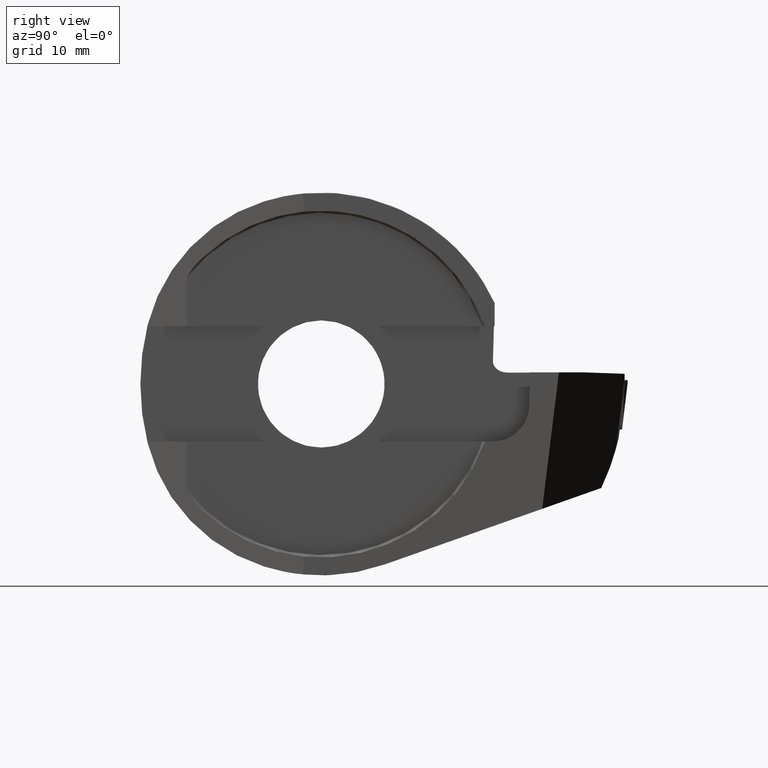
[diagram: clean part render]
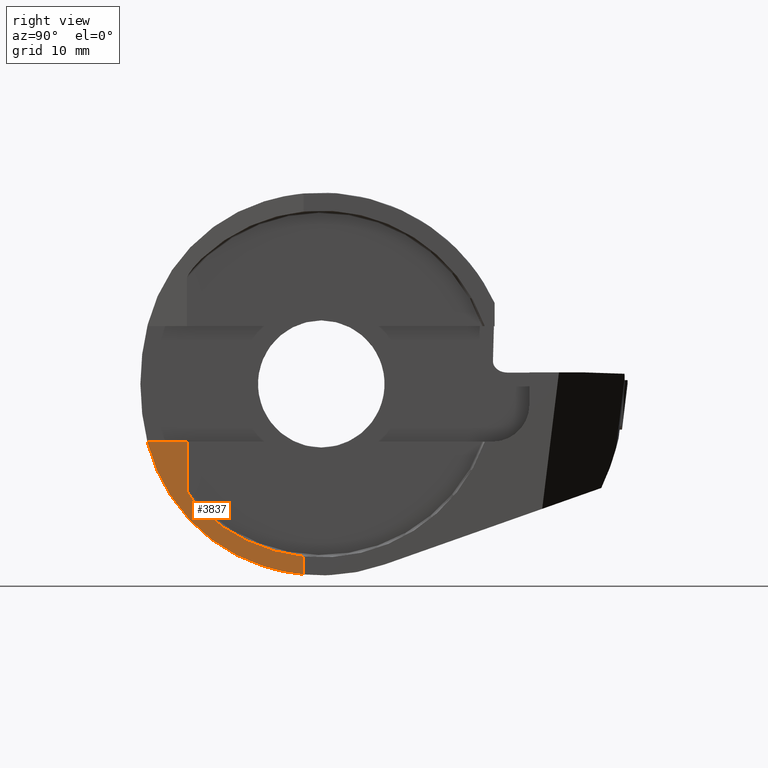
[diagram: same view with one face highlighted and labeled with its STEP entity id]
A machine part, right view. The second image highlights one B-rep face of the part: STEP entity #3837.
In plain terms, the highlighted planar face has unit normal (-0.9877, 0.1564, 0).
Its self-contained STEP definition (entity closure, byte-faithful):
#33 = ORIENTED_EDGE ( 'NONE', *, *, #214, .F. ) ;
#42 = ORIENTED_EDGE ( 'NONE', *, *, #3333, .F. ) ;
#188 = ORIENTED_EDGE ( 'NONE', *, *, #4041, .T. ) ;
#214 = EDGE_CURVE ( 'NONE', #4493, #808, #4187, .T. ) ;
#217 = LINE ( 'NONE', #3490, #585 ) ;
#268 = CARTESIAN_POINT ( 'NONE',  ( 1.415928844529612800, -2.687680142529154500, -16.37196111214094400 ) ) ;
#410 = CARTESIAN_POINT ( 'NONE',  ( 0.2553878595707800300, -10.01504754415546500, -14.20626363584167800 ) ) ;
#424 =( BOUNDED_CURVE ( )  B_SPLINE_CURVE ( 3, ( #586, #268, #3154, #1683 ),
 .UNSPECIFIED., .F., .T. ) 
 B_SPLINE_CURVE_WITH_KNOTS ( ( 4, 4 ),
 ( 1.663102616026507200, 1.874276952716321900 ),
 .UNSPECIFIED. ) 
 CURVE ( )  GEOMETRIC_REPRESENTATION_ITEM ( )  RATIONAL_B_SPLINE_CURVE ( ( 1.000000000000000000, 0.9962872345774936900, 0.9962872345774936900, 1.000000000000000000 ) ) 
 REPRESENTATION_ITEM ( '' )  );
#430 = FACE_OUTER_BOUND ( 'NONE', #1128, .T. ) ;
#519 = VERTEX_POINT ( 'NONE', #2794 ) ;
#556 =( BOUNDED_CURVE ( )  B_SPLINE_CURVE ( 3, ( #1821, #410, #3933, #2484 ),
 .UNSPECIFIED., .F., .T. ) 
 B_SPLINE_CURVE_WITH_KNOTS ( ( 4, 4 ),
 ( 1.874276952716321900, 2.890358343270695400 ),
 .UNSPECIFIED. ) 
 CURVE ( )  GEOMETRIC_REPRESENTATION_ITEM ( )  RATIONAL_B_SPLINE_CURVE ( ( 1.000000000000000000, 0.9157995465607783300, 0.9157995465607783300, 1.000000000000000000 ) ) 
 REPRESENTATION_ITEM ( '' )  );
#585 = VECTOR ( 'NONE', #2487, 1000.000000000000000 ) ;
#586 = CARTESIAN_POINT ( 'NONE',  ( 1.600000000000000100, -1.525500605870013800, -16.47954331592627500 ) ) ;
#808 = VERTEX_POINT ( 'NONE', #1012 ) ;
#907 = ORIENTED_EDGE ( 'NONE', *, *, #2688, .F. ) ;
#944 = CARTESIAN_POINT ( 'NONE',  ( 0.01231446645605435700, -11.54975254811076000, -9.365448362965901600 ) ) ;
#1012 = CARTESIAN_POINT ( 'NONE',  ( -1.344410693882025500E-014, -11.62750302935026200, -5.000000000000004400 ) ) ;
#1128 = EDGE_LOOP ( 'NONE', ( #4056, #188, #1925, #33, #907, #2137, #42, #2810 ) ) ;
#1283 = CARTESIAN_POINT ( 'NONE',  ( 0.06958123498650833900, -11.18818440156106300, -9.922195239580375400 ) ) ;
#1462 = PLANE ( 'NONE',  #1493 ) ;
#1493 = AXIS2_PLACEMENT_3D ( 'NONE', #2935, #1868, #1507 ) ;
#1507 = DIRECTION ( 'NONE',  ( -0.1564344650402310900, -0.9876883405951376600, 0.0000000000000000000 ) ) ;
#1593 =( BOUNDED_CURVE ( )  B_SPLINE_CURVE ( 3, ( #2044, #2348, #3107, #3780 ),
 .UNSPECIFIED., .F., .F. ) 
 B_SPLINE_CURVE_WITH_KNOTS ( ( 4, 4 ),
 ( 2.890358343270695400, 2.900603322821193200 ),
 .UNSPECIFIED. ) 
 CURVE ( )  GEOMETRIC_REPRESENTATION_ITEM ( )  RATIONAL_B_SPLINE_CURVE ( ( 1.000000000000000000, 0.9999912533852933800, 0.9999912533852933800, 1.000000000000000000 ) ) 
 REPRESENTATION_ITEM ( '' )  );
#1631 = CARTESIAN_POINT ( 'NONE',  ( 0.02253956269446830800, -11.48519383124777900, -9.482933254018037800 ) ) ;
#1683 = CARTESIAN_POINT ( 'NONE',  ( 1.058268096924892800, -4.945861229458291300, -15.79369990530849300 ) ) ;
#1713 = CARTESIAN_POINT ( 'NONE',  ( 0.5854334452163994000, -7.931221727873622600, -13.16924169708717700 ) ) ;
#1821 = CARTESIAN_POINT ( 'NONE',  ( 1.058268096924892800, -4.945861229458291300, -15.79369990530849300 ) ) ;
#1868 = DIRECTION ( 'NONE',  ( -0.9876883405951377700, 0.1564344650402311200, 0.0000000000000000000 ) ) ;
#1925 = ORIENTED_EDGE ( 'NONE', *, *, #4550, .T. ) ;
#1981 = CARTESIAN_POINT ( 'NONE',  ( 0.009050163325466101900, -11.57036254694587100, -9.325587818281382700 ) ) ;
#1989 = CARTESIAN_POINT ( 'NONE',  ( -0.5412140213650181700, -15.04459387650684800, -5.000000000000005300 ) ) ;
#2003 = DIRECTION ( 'NONE',  ( 0.0000000000000000000, 0.0000000000000000000, 1.000000000000000000 ) ) ;
#2009 = CARTESIAN_POINT ( 'NONE',  ( 0.05301345646430736400, -11.29278923830041000, -9.780206514112237000 ) ) ;
#2044 = CARTESIAN_POINT ( 'NONE',  ( -0.5329318340656155100, -14.99230220390042400, -5.208163905406387100 ) ) ;
#2137 = ORIENTED_EDGE ( 'NONE', *, *, #2352, .F. ) ;
#2255 = DIRECTION ( 'NONE',  ( 0.1564344650402310900, 0.9876883405951376600, 1.077588774452177200E-016 ) ) ;
#2298 = CARTESIAN_POINT ( 'NONE',  ( -9.539532103254288500E-016, -11.62750302935009300, -9.179223189376474000 ) ) ;
#2341 = CARTESIAN_POINT ( 'NONE',  ( 0.0000000000000000000, -11.62750302935009100, 0.0000000000000000000 ) ) ;
#2348 = CARTESIAN_POINT ( 'NONE',  ( -0.5357488473702672900, -15.01008812591951400, -5.138865528638398800 ) ) ;
#2349 = CARTESIAN_POINT ( 'NONE',  ( 0.0000000000000000000, -11.62750302935008800, -9.156482583528154300 ) ) ;
#2352 = EDGE_CURVE ( 'NONE', #519, #3986, #556, .T. ) ;
#2408 = CARTESIAN_POINT ( 'NONE',  ( 1.069566116142070000, -4.874528343513000000, -14.57985522566265300 ) ) ;
#2484 = CARTESIAN_POINT ( 'NONE',  ( -0.5329318340656155100, -14.99230220390042400, -5.208163905406387100 ) ) ;
#2487 = DIRECTION ( 'NONE',  ( 0.0000000000000000000, 0.0000000000000000000, -1.000000000000000000 ) ) ;
#2661 = LINE ( 'NONE', #2341, #2715 ) ;
#2688 = EDGE_CURVE ( 'NONE', #3986, #4493, #1593, .T. ) ;
#2701 = CARTESIAN_POINT ( 'NONE',  ( 0.1594578434899053300, -10.62072582848888800, -10.59837601919738500 ) ) ;
#2715 = VECTOR ( 'NONE', #2003, 1000.000000000000000 ) ;
#2718 = CARTESIAN_POINT ( 'NONE',  ( 0.001098421702203310100, -11.62056786766405200, -9.201249738052290200 ) ) ;
#2794 = CARTESIAN_POINT ( 'NONE',  ( 1.058268096924892800, -4.945861229458291300, -15.79369990530849300 ) ) ;
#2810 = ORIENTED_EDGE ( 'NONE', *, *, #3667, .F. ) ;
#2907 = CARTESIAN_POINT ( 'NONE',  ( 4.058802035629874200, 13.99876447087413600, -5.000000000000001800 ) ) ;
#2935 = CARTESIAN_POINT ( 'NONE',  ( 2.000000000000003600, 1.000000000000000900, -16.55000000000000400 ) ) ;
#3057 = CARTESIAN_POINT ( 'NONE',  ( -0.5329318340656155100, -14.99230220390042400, -5.208163905406387100 ) ) ;
#3100 = CARTESIAN_POINT ( 'NONE',  ( 0.2000000000000004000, -10.36475272641507800, -10.84305772926950300 ) ) ;
#3107 = CARTESIAN_POINT ( 'NONE',  ( -0.5385096006173132300, -15.02751883591469500, -5.069476953254470800 ) ) ;
#3128 = VERTEX_POINT ( 'NONE', #3759 ) ;
#3154 = CARTESIAN_POINT ( 'NONE',  ( 1.234678603878264400, -3.832049123976821700, -16.14249468692584700 ) ) ;
#3291 = VERTEX_POINT ( 'NONE', #4198 ) ;
#3333 = EDGE_CURVE ( 'NONE', #3747, #519, #424, .T. ) ;
#3350 = EDGE_CURVE ( 'NONE', #3291, #4243, #4566, .T. ) ;
#3438 = CARTESIAN_POINT ( 'NONE',  ( 0.1215747468644344800, -10.85991028718853400, -10.33672129601756100 ) ) ;
#3490 = CARTESIAN_POINT ( 'NONE',  ( 1.600000000000000100, -1.525500605870034700, 0.0000000000000000000 ) ) ;
#3667 = EDGE_CURVE ( 'NONE', #3291, #3747, #217, .T. ) ;
#3747 = VERTEX_POINT ( 'NONE', #3961 ) ;
#3759 = CARTESIAN_POINT ( 'NONE',  ( 0.0000000000000000000, -11.62750302935008800, -9.156482583528154300 ) ) ;
#3780 = CARTESIAN_POINT ( 'NONE',  ( -0.5412140213650181700, -15.04459387650684800, -5.000000000000005300 ) ) ;
#3781 = CARTESIAN_POINT ( 'NONE',  ( 0.02994526751679834100, -11.43843605120855500, -9.558314412337763200 ) ) ;
#3831 = CARTESIAN_POINT ( 'NONE',  ( 1.600000000000001600, -1.525500605870034200, -14.92222664019985100 ) ) ;
#3837 = ADVANCED_FACE ( 'NONE', ( #430 ), #1462, .F. ) ;
#3933 = CARTESIAN_POINT ( 'NONE',  ( -0.3237781587884960300, -13.67175786981965600, -10.35333314115159800 ) ) ;
#3961 = CARTESIAN_POINT ( 'NONE',  ( 1.600000000000000100, -1.525500605870013800, -16.47954331592627500 ) ) ;
#3986 = VERTEX_POINT ( 'NONE', #3057 ) ;
#4041 = EDGE_CURVE ( 'NONE', #4243, #3128, #4405, .T. ) ;
#4056 = ORIENTED_EDGE ( 'NONE', *, *, #3350, .T. ) ;
#4162 = CARTESIAN_POINT ( 'NONE',  ( 0.004729885912967458200, -11.59763970500285200, -9.264373748421389700 ) ) ;
#4187 = LINE ( 'NONE', #2907, #4242 ) ;
#4198 = CARTESIAN_POINT ( 'NONE',  ( 1.600000000000001600, -1.525500605870034200, -14.92222664019985100 ) ) ;
#4242 = VECTOR ( 'NONE', #2255, 1000.000000000000000 ) ;
#4243 = VERTEX_POINT ( 'NONE', #4345 ) ;
#4345 = CARTESIAN_POINT ( 'NONE',  ( 0.2000000000000004000, -10.36475272641507800, -10.84305772926950300 ) ) ;
#4405 = B_SPLINE_CURVE_WITH_KNOTS ( 'NONE', 3,
 ( #4496, #2701, #3438, #1283, #2009, #3781, #1631, #944, #1981, #4162, #4480, #2718, #2298, #2349 ),
 .UNSPECIFIED., .F., .F.,
 ( 4, 2, 2, 2, 2, 2, 4 ),
 ( 0.0001178733981618184300, 0.001187072674109947700, 0.001721672312084016000, 0.001988972131071048400, 0.002122622040564564500, 0.002189446995311320600, 0.002256271950058075800 ),
 .UNSPECIFIED. ) ;
#4480 = CARTESIAN_POINT ( 'NONE',  ( 0.003380977763415539400, -11.60615637587524100, -9.243716222679529100 ) ) ;
#4493 = VERTEX_POINT ( 'NONE', #1989 ) ;
#4496 = CARTESIAN_POINT ( 'NONE',  ( 0.2000000000000004000, -10.36475272641507800, -10.84305772926950300 ) ) ;
#4550 = EDGE_CURVE ( 'NONE', #3128, #808, #2661, .T. ) ;
#4566 =( BOUNDED_CURVE ( )  B_SPLINE_CURVE ( 3, ( #3831, #2408, #1713, #3100 ),
 .UNSPECIFIED., .F., .F. ) 
 B_SPLINE_CURVE_WITH_KNOTS ( ( 4, 4 ),
 ( 1.672672500395951300, 2.333645065198970900 ),
 .UNSPECIFIED. ) 
 CURVE ( )  GEOMETRIC_REPRESENTATION_ITEM ( )  RATIONAL_B_SPLINE_CURVE ( ( 1.000000000000000000, 0.9639231035046474900, 0.9639231035046474900, 1.000000000000000000 ) ) 
 REPRESENTATION_ITEM ( '' )  );